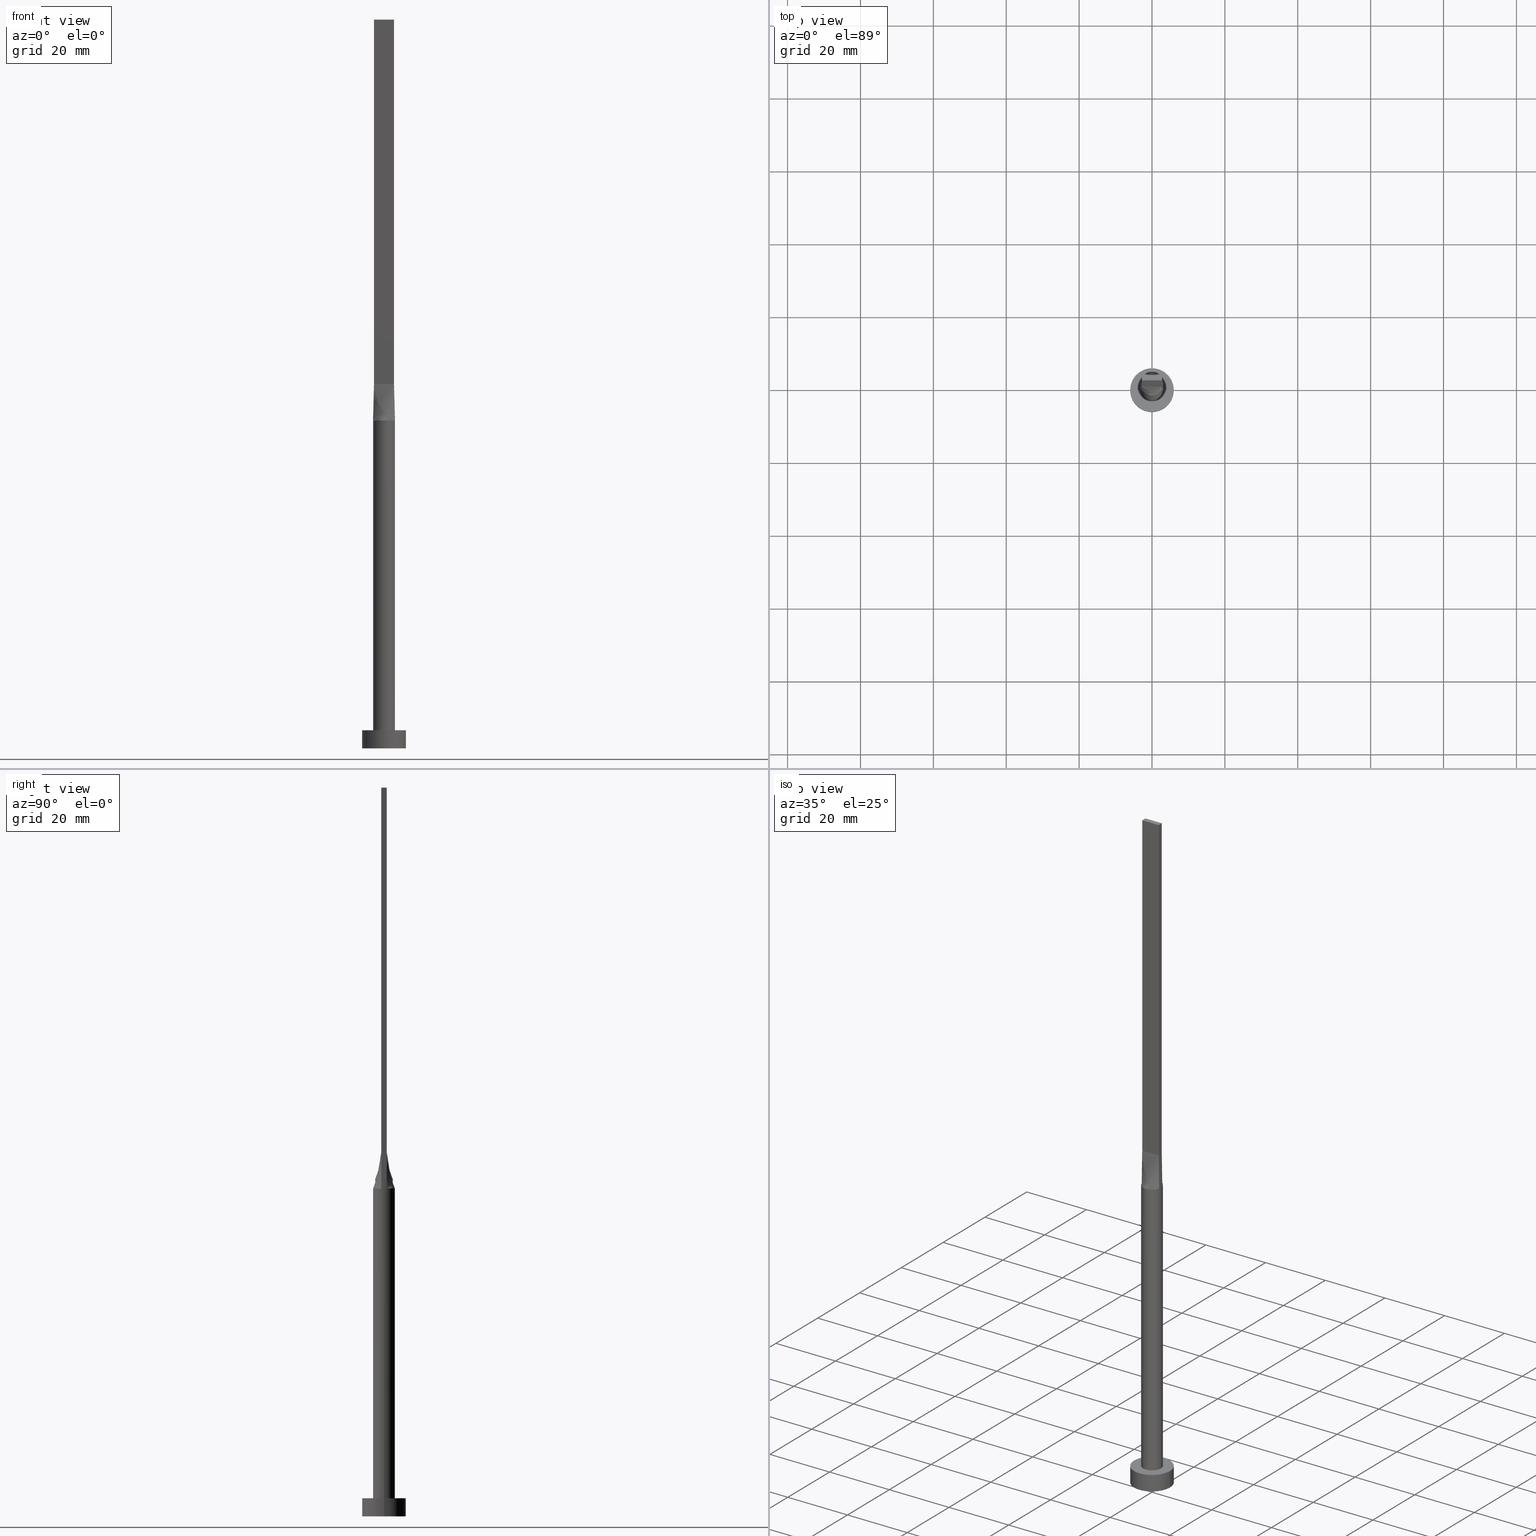
[diagram: canonical four-view strip — front | top / right | iso, engineering-drawing reading convention]
A machine part, canonical four-view strip (front | top / right | iso — engineering-drawing reading convention). The complete STEP part file that produces these views, byte-faithful:
ISO-10303-21;
HEADER;
FILE_DESCRIPTION (( 'STEP AP203' ),
    '1' );
FILE_NAME ('8ec6.STEP',
    '2023-02-13T10:28:10',
    ( '' ),
    ( '' ),
    'SwSTEP 2.0',
    'SolidWorks 2019',
    '' );
FILE_SCHEMA (( 'CONFIG_CONTROL_DESIGN' ));
ENDSEC;

DATA;
#1 = CARTESIAN_POINT ( 'NONE',  ( -6.000000000000000888, 0.000000000000000000, 5.000000000000000000 ) ) ;
#2 = CARTESIAN_POINT ( 'NONE',  ( 2.520833333333333037, 0.7500000000000002220, 100.0000000000000000 ) ) ;
#3 = FACE_OUTER_BOUND ( 'NONE', #113, .T. ) ;
#4 = CC_DESIGN_DATE_AND_TIME_ASSIGNMENT ( #383, #248, ( #301 ) ) ;
#5 = LOCAL_TIME ( 11, 28, 10.00000000000000000, #408 ) ;
#6 = CARTESIAN_POINT ( 'NONE',  ( 2.750000000000000000, -0.7499999999999997780, 200.0000000000000000 ) ) ;
#7 = AXIS2_PLACEMENT_3D ( 'NONE', #29, #311, #445 ) ;
#8 = EDGE_LOOP ( 'NONE', ( #475, #428 ) ) ;
#9 = AXIS2_PLACEMENT_3D ( 'NONE', #112, #63, #290 ) ;
#10 = ORIENTED_EDGE ( 'NONE', *, *, #479, .F. ) ;
#11 = PRODUCT_RELATED_PRODUCT_CATEGORY ( 'detail', '', ( #179 ) ) ;
#12 = VERTEX_POINT ( 'NONE', #153 ) ;
#13 = DIRECTION ( 'NONE',  ( 0.000000000000000000, 0.000000000000000000, 1.000000000000000000 ) ) ;
#14 = CARTESIAN_POINT ( 'NONE',  ( -2.750000000000000000, 0.7500000000000002220, 100.0000000000000000 ) ) ;
#15 = CIRCLE ( 'NONE', #347, 3.000000000000000444 ) ;
#16 = CARTESIAN_POINT ( 'NONE',  ( 2.520833333333333481, -0.7499999999999997780, 100.0000000000000000 ) ) ;
#17 = CARTESIAN_POINT ( 'NONE',  ( 2.750000000000000000, 0.7500000000000002220, 200.0000000000000000 ) ) ;
#18 = EDGE_CURVE ( 'NONE', #274, #464, #47, .T. ) ;
#19 = ORIENTED_EDGE ( 'NONE', *, *, #472, .F. ) ;
#20 = DATE_AND_TIME ( #557, #310 ) ;
#21 = CARTESIAN_POINT ( 'NONE',  ( -2.750000000000000000, 0.7500000000000002220, 100.0000000000000000 ) ) ;
#22 = CARTESIAN_POINT ( 'NONE',  ( 0.000000000000000000, 0.000000000000000000, 200.0000000000000000 ) ) ;
#23 = APPROVAL_ROLE ( '' ) ;
#24 = CYLINDRICAL_SURFACE ( 'NONE', #9, 6.000000000000000888 ) ;
#25 = VECTOR ( 'NONE', #315, 1000.000000000000000 ) ;
#26 = ORIENTED_EDGE ( 'NONE', *, *, #358, .T. ) ;
#27 = CARTESIAN_POINT ( 'NONE',  ( -3.000000000000000444, 0.000000000000000000, 90.00000000000001421 ) ) ;
#28 = EDGE_CURVE ( 'NONE', #521, #545, #377, .T. ) ;
#29 = CARTESIAN_POINT ( 'NONE',  ( 2.750000000000000000, 0.7500000000000002220, 200.0000000000000000 ) ) ;
#30 = APPROVAL_STATUS ( 'not_yet_approved' ) ;
#31 = CARTESIAN_POINT ( 'NONE',  ( 1.145833333333335924, -0.7499999999999996669, 100.0000000000000000 ) ) ;
#32 = CARTESIAN_POINT ( 'NONE',  ( 1.751288851749022379, 2.458468820606022565, 89.99999999999997158 ) ) ;
#33 = VERTEX_POINT ( 'NONE', #200 ) ;
#34 = EDGE_CURVE ( 'NONE', #555, #552, #298, .T. ) ;
#35 = CARTESIAN_POINT ( 'NONE',  ( 1.145833333333333037, 0.7500000000000003331, 100.0000000000000142 ) ) ;
#36 = CC_DESIGN_APPROVAL ( #221, ( #374 ) ) ;
#37 = DIRECTION ( 'NONE',  ( -1.000000000000000000, 0.000000000000000000, 0.000000000000000000 ) ) ;
#38 = CARTESIAN_POINT ( 'NONE',  ( -2.894291463713197121, -0.7893522173763259930, 90.00000000000001421 ) ) ;
#39 = PERSON_AND_ORGANIZATION ( #367, #73 ) ;
#40 = DIRECTION ( 'NONE',  ( -0.000000000000000000, -0.000000000000000000, -1.000000000000000000 ) ) ;
#41 = CARTESIAN_POINT ( 'NONE',  ( 0.9166666666666664076, 0.7500000000000003331, 100.0000000000000142 ) ) ;
#42 = EDGE_CURVE ( 'NONE', #243, #407, #15, .T. ) ;
#43 = CARTESIAN_POINT ( 'NONE',  ( -3.000000000000000000, 0.2678361673275868049, 90.00000000000001421 ) ) ;
#44 = DIRECTION ( 'NONE',  ( 0.000000000000000000, 0.000000000000000000, 1.000000000000000000 ) ) ;
#45 = AXIS2_PLACEMENT_3D ( 'NONE', #329, #197, #341 ) ;
#46 = CALENDAR_DATE ( 2023, 13, 2 ) ;
#47 = CIRCLE ( 'NONE', #450, 6.000000000000000888 ) ;
#48 = FACE_OUTER_BOUND ( 'NONE', #518, .T. ) ;
#49 = CARTESIAN_POINT ( 'NONE',  ( -2.750000000000000000, 0.7500000000000002220, 200.0000000000000000 ) ) ;
#50 = DIRECTION ( 'NONE',  ( -0.01442753284129401174, 0.003934781683989412894, 0.9998881756422629552 ) ) ;
#51 = CARTESIAN_POINT ( 'NONE',  ( 2.822145731856598339, 0.7696761086881640512, 95.00000000000000000 ) ) ;
#52 = ORIENTED_EDGE ( 'NONE', *, *, #534, .F. ) ;
#53 = CARTESIAN_POINT ( 'NONE',  ( -2.750000000000000000, 0.7500000000000002220, 100.0000000000000000 ) ) ;
#54 = AXIS2_PLACEMENT_3D ( 'NONE', #293, #13, #196 ) ;
#55 = VERTEX_POINT ( 'NONE', #151 ) ;
#56 = ADVANCED_FACE ( 'NONE', ( #239 ), #75, .T. ) ;
#57 = DATE_AND_TIME ( #303, #402 ) ;
#58 = CARTESIAN_POINT ( 'NONE',  ( -2.248179627679386616, -2.014142483996539390, 89.99999999999998579 ) ) ;
#59 = LINE ( 'NONE', #508, #188 ) ;
#60 = CC_DESIGN_APPROVAL ( #169, ( #301 ) ) ;
#61 = ORIENTED_EDGE ( 'NONE', *, *, #42, .T. ) ;
#62 = ORIENTED_EDGE ( 'NONE', *, *, #455, .F. ) ;
#63 = DIRECTION ( 'NONE',  ( -0.000000000000000000, -0.000000000000000000, -1.000000000000000000 ) ) ;
#64 = DATE_TIME_ROLE ( 'creation_date' ) ;
#65 = ADVANCED_FACE ( 'NONE', ( #198 ), #375, .F. ) ;
#66 = CARTESIAN_POINT ( 'NONE',  ( 2.733316749964666670, -1.269511353635832229, 90.00000000000004263 ) ) ;
#67 = DIRECTION ( 'NONE',  ( 1.000000000000000000, 0.000000000000000000, 0.000000000000000000 ) ) ;
#68 = LINE ( 'NONE', #204, #244 ) ;
#69 = VECTOR ( 'NONE', #514, 1000.000000000000000 ) ;
#70 = DIRECTION ( 'NONE',  ( 0.000000000000000000, 0.000000000000000000, 1.000000000000000000 ) ) ;
#71 = DIRECTION ( 'NONE',  ( 1.000000000000000000, 0.000000000000000000, 0.000000000000000000 ) ) ;
#72 = CARTESIAN_POINT ( 'NONE',  ( -1.833333333333333481, 0.7500000000000002220, 100.0000000000000000 ) ) ;
#73 = ORGANIZATION ( 'NEUR�EN�', 'NEUR�EN�', '' ) ;
#74 = CARTESIAN_POINT ( 'NONE',  ( 2.750000000000000000, 0.7500000000000002220, 200.0000000000000000 ) ) ;
#75 = CYLINDRICAL_SURFACE ( 'NONE', #317, 6.000000000000000888 ) ;
#76 = CARTESIAN_POINT ( 'NONE',  ( -2.520833333333333037, 0.7500000000000002220, 100.0000000000000000 ) ) ;
#77 = ORIENTED_EDGE ( 'NONE', *, *, #152, .F. ) ;
#78 = APPROVAL_DATE_TIME ( #164, #169 ) ;
#79 = CC_DESIGN_PERSON_AND_ORGANIZATION_ASSIGNMENT ( #166, #155, ( #374 ) ) ;
#80 = VERTEX_POINT ( 'NONE', #556 ) ;
#81 = CARTESIAN_POINT ( 'NONE',  ( 2.442412046818594362, -1.765588549521970751, 90.00000000000002842 ) ) ;
#82 = DIRECTION ( 'NONE',  ( -0.01442753284129405511, -0.003934781683989273249, -0.9998881756422629552 ) ) ;
#83 = ORIENTED_EDGE ( 'NONE', *, *, #534, .T. ) ;
#84 = CC_DESIGN_APPROVAL ( #278, ( #291 ) ) ;
#85 = ORIENTED_EDGE ( 'NONE', *, *, #305, .F. ) ;
#86 = CARTESIAN_POINT ( 'NONE',  ( 0.000000000000000000, 0.000000000000000000, 90.00000000000001421 ) ) ;
#87 = DIRECTION ( 'NONE',  ( 0.000000000000000000, 0.000000000000000000, 1.000000000000000000 ) ) ;
#88 = VECTOR ( 'NONE', #40, 1000.000000000000000 ) ;
#89 = ORIENTED_EDGE ( 'NONE', *, *, #187, .T. ) ;
#90 = AXIS2_PLACEMENT_3D ( 'NONE', #124, #327, #253 ) ;
#91 = CARTESIAN_POINT ( 'NONE',  ( 0.9166666666666695162, -0.7499999999999995559, 100.0000000000000000 ) ) ;
#92 = FACE_BOUND ( 'NONE', #466, .T. ) ;
#93 = DIRECTION ( 'NONE',  ( -0.000000000000000000, -0.000000000000000000, -1.000000000000000000 ) ) ;
#94 = CC_DESIGN_PERSON_AND_ORGANIZATION_ASSIGNMENT ( #235, #149, ( #179 ) ) ;
#95 = FACE_OUTER_BOUND ( 'NONE', #8, .T. ) ;
#96 = FACE_OUTER_BOUND ( 'NONE', #525, .T. ) ;
#97 = CARTESIAN_POINT ( 'NONE',  ( 0.3818979204996068022, -3.000000000000001332, 90.00000000000001421 ) ) ;
#98 = CARTESIAN_POINT ( 'NONE',  ( -2.963522232943965662, 0.5355060635301726046, 89.99999999999998579 ) ) ;
#99 = CARTESIAN_POINT ( 'NONE',  ( 2.894482401701604424, 0.7894050286368272662, 90.00000000000001421 ) ) ;
#100 = CARTESIAN_POINT ( 'NONE',  ( -1.751288851749021491, 2.458468820606022565, 89.99999999999998579 ) ) ;
#101 = CARTESIAN_POINT ( 'NONE',  ( 0.4583333333333364235, -0.7499999999999995559, 100.0000000000000000 ) ) ;
#102 = LINE ( 'NONE', #231, #25 ) ;
#103 = AXIS2_PLACEMENT_3D ( 'NONE', #22, #339, #201 ) ;
#104 = PLANE ( 'NONE',  #430 ) ;
#105 = EDGE_CURVE ( 'NONE', #545, #116, #59, .T. ) ;
#106 = EDGE_LOOP ( 'NONE', ( #302, #168, #338, #176 ) ) ;
#107 = VECTOR ( 'NONE', #354, 1000.000000000000000 ) ;
#108 = DIRECTION ( 'NONE',  ( 1.000000000000000000, -5.329070518200751394E-15, 0.000000000000000000 ) ) ;
#109 = CARTESIAN_POINT ( 'NONE',  ( -2.894291463713197121, -0.7893522173763257710, 90.00000000000001421 ) ) ;
#110 = CC_DESIGN_PERSON_AND_ORGANIZATION_ASSIGNMENT ( #424, #562, ( #374 ) ) ;
#111 = CARTESIAN_POINT ( 'NONE',  ( 0.000000000000000000, 0.000000000000000000, 5.000000000000000000 ) ) ;
#112 = CARTESIAN_POINT ( 'NONE',  ( 0.000000000000000000, 0.000000000000000000, 5.000000000000000000 ) ) ;
#113 = EDGE_LOOP ( 'NONE', ( #247, #131, #62, #568, #150, #260 ) ) ;
#114 = CARTESIAN_POINT ( 'NONE',  ( 1.604166666666668961, -0.7499999999999997780, 100.0000000000000000 ) ) ;
#115 = CARTESIAN_POINT ( 'NONE',  ( -2.750000000000000000, -0.7499999999999994449, 200.0000000000000000 ) ) ;
#116 = VERTEX_POINT ( 'NONE', #21 ) ;
#117 = FACE_OUTER_BOUND ( 'NONE', #506, .T. ) ;
#118 = PERSON_AND_ORGANIZATION ( #367, #73 ) ;
#119 = ORIENTED_EDGE ( 'NONE', *, *, #271, .F. ) ;
#120 = APPROVAL_ROLE ( '' ) ;
#121 = CARTESIAN_POINT ( 'NONE',  ( 2.750000000000000000, -0.7499999999999997780, 100.0000000000000000 ) ) ;
#122 = ORIENTED_EDGE ( 'NONE', *, *, #472, .T. ) ;
#123 = CC_DESIGN_PERSON_AND_ORGANIZATION_ASSIGNMENT ( #513, #159, ( #301 ) ) ;
#124 = CARTESIAN_POINT ( 'NONE',  ( 0.000000000000000000, 0.000000000000000000, 90.00000000000001421 ) ) ;
#125 = ORIENTED_EDGE ( 'NONE', *, *, #18, .F. ) ;
#126 = PERSON_AND_ORGANIZATION ( #367, #73 ) ;
#127 = CARTESIAN_POINT ( 'NONE',  ( 2.750000000000000000, -0.7499999999999997780, 200.0000000000000000 ) ) ;
#128 = AXIS2_PLACEMENT_3D ( 'NONE', #236, #328, #67 ) ;
#129 = ORIENTED_EDGE ( 'NONE', *, *, #34, .F. ) ;
#130 = EDGE_CURVE ( 'NONE', #340, #33, #416, .T. ) ;
#131 = ORIENTED_EDGE ( 'NONE', *, *, #42, .F. ) ;
#132 = CARTESIAN_POINT ( 'NONE',  ( -0.9166666666666669627, 0.7500000000000002220, 100.0000000000000000 ) ) ;
#133 = VERTEX_POINT ( 'NONE', #115 ) ;
#134 = DIRECTION ( 'NONE',  ( 0.000000000000000000, 0.000000000000000000, 1.000000000000000000 ) ) ;
#135 = CARTESIAN_POINT ( 'NONE',  ( 2.894291463713196677, 0.7893522173763277694, 90.00000000000001421 ) ) ;
#136 = LINE ( 'NONE', #396, #427 ) ;
#137 = DIRECTION ( 'NONE',  ( -0.000000000000000000, -0.000000000000000000, -1.000000000000000000 ) ) ;
#138 = CARTESIAN_POINT ( 'NONE',  ( -2.894291463713196677, 0.7893522173763264371, 90.00000000000001421 ) ) ;
#139 = LINE ( 'NONE', #279, #161 ) ;
#140 = EDGE_CURVE ( 'NONE', #55, #80, #292, .T. ) ;
#141 = CARTESIAN_POINT ( 'NONE',  ( 2.750000000000000000, 0.7500000000000002220, 100.0000000000000000 ) ) ;
#142 = CARTESIAN_POINT ( 'NONE',  ( -2.963522232943966106, -0.5355060635301720495, 90.00000000000002842 ) ) ;
#143 = CARTESIAN_POINT ( 'NONE',  ( 0.7628506052746785171, -2.924692134573155577, 90.00000000000000000 ) ) ;
#144 = CARTESIAN_POINT ( 'NONE',  ( 3.000000000000000444, 3.673940397442060361E-16, 90.00000000000001421 ) ) ;
#145 = CARTESIAN_POINT ( 'NONE',  ( 1.833333333333333037, 0.7500000000000002220, 100.0000000000000000 ) ) ;
#146 = EDGE_CURVE ( 'NONE', #133, #203, #468, .T. ) ;
#147 = CARTESIAN_POINT ( 'NONE',  ( -0.4583333333333302062, -0.7499999999999995559, 100.0000000000000142 ) ) ;
#148 = CARTESIAN_POINT ( 'NONE',  ( 2.248179627679384840, -2.014142483996542055, 90.00000000000001421 ) ) ;
#149 = PERSON_AND_ORGANIZATION_ROLE ( 'design_owner' ) ;
#150 = ORIENTED_EDGE ( 'NONE', *, *, #152, .T. ) ;
#151 = CARTESIAN_POINT ( 'NONE',  ( -6.000000000000000888, 0.000000000000000000, 0.000000000000000000 ) ) ;
#152 = EDGE_CURVE ( 'NONE', #340, #555, #390, .T. ) ;
#153 = CARTESIAN_POINT ( 'NONE',  ( -2.750000000000000000, -0.7499999999999994449, 100.0000000000000000 ) ) ;
#154 = ORIENTED_EDGE ( 'NONE', *, *, #140, .T. ) ;
#155 = PERSON_AND_ORGANIZATION_ROLE ( 'creator' ) ;
#156 = ORIENTED_EDGE ( 'NONE', *, *, #191, .F. ) ;
#157 = PLANE ( 'NONE',  #510 ) ;
#158 = DESIGN_CONTEXT ( 'detailed design', #330, 'design' ) ;
#159 = PERSON_AND_ORGANIZATION_ROLE ( 'classification_officer' ) ;
#160 = DIRECTION ( 'NONE',  ( 1.000000000000000000, 0.000000000000000000, -0.000000000000000000 ) ) ;
#161 = VECTOR ( 'NONE', #185, 1000.000000000000000 ) ;
#162 = VECTOR ( 'NONE', #548, 1000.000000000000000 ) ;
#163 = CC_DESIGN_DATE_AND_TIME_ASSIGNMENT ( #57, #64, ( #291 ) ) ;
#164 = DATE_AND_TIME ( #370, #498 ) ;
#165 = ORIENTED_EDGE ( 'NONE', *, *, #146, .F. ) ;
#166 = PERSON_AND_ORGANIZATION ( #367, #73 ) ;
#167 = LINE ( 'NONE', #566, #442 ) ;
#168 = ORIENTED_EDGE ( 'NONE', *, *, #312, .F. ) ;
#169 = APPROVAL ( #413, 'NEUR�EN�' ) ;
#170 = CLOSED_SHELL ( 'NONE', ( #325, #447, #56, #372, #65, #286, #520, #366, #563, #382, #209, #412, #577, #344, #462 ) ) ;
#171 = ORIENTED_EDGE ( 'NONE', *, *, #146, .T. ) ;
#172 = ORIENTED_EDGE ( 'NONE', *, *, #554, .T. ) ;
#173 = COORDINATED_UNIVERSAL_TIME_OFFSET ( 1, 0, .AHEAD. ) ;
#174 = CARTESIAN_POINT ( 'NONE',  ( -0.4583333333333337034, 0.7500000000000003331, 100.0000000000000000 ) ) ;
#175 =( NAMED_UNIT ( * ) SI_UNIT ( $, .STERADIAN. ) SOLID_ANGLE_UNIT ( ) );
#176 = ORIENTED_EDGE ( 'NONE', *, *, #105, .T. ) ;
#177 = CARTESIAN_POINT ( 'NONE',  ( 1.751288851749022379, 2.458468820606022565, 89.99999999999997158 ) ) ;
#178 = DIRECTION ( 'NONE',  ( 1.000000000000000000, 0.000000000000000000, 0.000000000000000000 ) ) ;
#179 = PRODUCT ( '8ec6', '8ec6', '', ( #207 ) ) ;
#180 = CARTESIAN_POINT ( 'NONE',  ( -0.3818979204996078569, 3.000000000000000888, 89.99999999999998579 ) ) ;
#181 = LINE ( 'NONE', #6, #107 ) ;
#182 = EDGE_CURVE ( 'NONE', #254, #572, #356, .T. ) ;
#183 = CARTESIAN_POINT ( 'NONE',  ( -2.750000000000000000, 0.7500000000000002220, 200.0000000000000000 ) ) ;
#184 = CARTESIAN_POINT ( 'NONE',  ( 0.3818979204996085230, 3.000000000000001332, 90.00000000000001421 ) ) ;
#185 = DIRECTION ( 'NONE',  ( 0.000000000000000000, 1.000000000000000000, 0.000000000000000000 ) ) ;
#186 = DATE_AND_TIME ( #46, #5 ) ;
#187 = EDGE_CURVE ( 'NONE', #12, #33, #349, .T. ) ;
#188 = VECTOR ( 'NONE', #501, 1000.000000000000000 ) ;
#189 = CARTESIAN_POINT ( 'NONE',  ( -1.751288851749022379, -2.458468820606022565, 90.00000000000001421 ) ) ;
#190 = LINE ( 'NONE', #452, #322 ) ;
#191 = EDGE_CURVE ( 'NONE', #116, #12, #167, .T. ) ;
#192 = ORIENTED_EDGE ( 'NONE', *, *, #28, .F. ) ;
#193 = ORIENTED_EDGE ( 'NONE', *, *, #547, .T. ) ;
#194 = DIRECTION ( 'NONE',  ( -1.000000000000000000, -0.000000000000000000, -0.000000000000000000 ) ) ;
#195 = COORDINATED_UNIVERSAL_TIME_OFFSET ( 1, 0, .AHEAD. ) ;
#196 = DIRECTION ( 'NONE',  ( 1.000000000000000000, 0.000000000000000000, 0.000000000000000000 ) ) ;
#197 = DIRECTION ( 'NONE',  ( 0.000000000000000000, 0.000000000000000000, 1.000000000000000000 ) ) ;
#198 = FACE_OUTER_BOUND ( 'NONE', #530, .T. ) ;
#199 = DIRECTION ( 'NONE',  ( -0.000000000000000000, 0.000000000000000000, -1.000000000000000000 ) ) ;
#200 = CARTESIAN_POINT ( 'NONE',  ( -2.894489875237701959, -0.7894071376467488577, 90.00000000000001421 ) ) ;
#201 = DIRECTION ( 'NONE',  ( 1.000000000000000000, 0.000000000000000000, -0.000000000000000000 ) ) ;
#202 = EDGE_CURVE ( 'NONE', #572, #340, #266, .T. ) ;
#203 = VERTEX_POINT ( 'NONE', #127 ) ;
#204 = CARTESIAN_POINT ( 'NONE',  ( -2.750000000000000000, 0.7500000000000002220, 100.0000000000000000 ) ) ;
#205 = AXIS2_PLACEMENT_3D ( 'NONE', #495, #137, #484 ) ;
#206 = ORIENTED_EDGE ( 'NONE', *, *, #130, .T. ) ;
#207 = MECHANICAL_CONTEXT ( 'NONE', #435, 'mechanical' ) ;
#208 = ORIENTED_EDGE ( 'NONE', *, *, #511, .T. ) ;
#209 = ADVANCED_FACE ( 'NONE', ( #478 ), #263, .F. ) ;
#210 = ORIENTED_EDGE ( 'NONE', *, *, #554, .F. ) ;
#211 = AXIS2_PLACEMENT_3D ( 'NONE', #461, #414, #550 ) ;
#212 = CARTESIAN_POINT ( 'NONE',  ( -0.7628506052746797383, 2.924692134573155133, 90.00000000000002842 ) ) ;
#213 = ORIENTED_EDGE ( 'NONE', *, *, #547, .F. ) ;
#214 = ORIENTED_EDGE ( 'NONE', *, *, #486, .F. ) ;
#215 = CARTESIAN_POINT ( 'NONE',  ( -1.751288851749021491, 2.458468820606022565, 89.99999999999998579 ) ) ;
#216 = CARTESIAN_POINT ( 'NONE',  ( -1.145833333333333703, 0.7500000000000002220, 100.0000000000000000 ) ) ;
#217 = DIRECTION ( 'NONE',  ( -1.000000000000000000, 5.913830031739115543E-17, 0.000000000000000000 ) ) ;
#218 = APPROVAL_PERSON_ORGANIZATION ( #39, #278, #224 ) ;
#219 = CARTESIAN_POINT ( 'NONE',  ( 2.894482401701604424, 0.7894050286368272662, 90.00000000000001421 ) ) ;
#220 = CARTESIAN_POINT ( 'NONE',  ( 2.750000000000000000, -0.7499999999999997780, 100.0000000000000000 ) ) ;
#221 = APPROVAL ( #30, 'NEUR�EN�' ) ;
#222 = APPLICATION_PROTOCOL_DEFINITION ( 'international standard', 'config_control_design', 1994, #435 ) ;
#223 = CARTESIAN_POINT ( 'NONE',  ( 0.000000000000000000, 0.000000000000000000, 90.00000000000001421 ) ) ;
#224 = APPROVAL_ROLE ( '' ) ;
#225 = CARTESIAN_POINT ( 'NONE',  ( 2.750000000000000000, 0.7500000000000002220, 100.0000000000000000 ) ) ;
#226 = CIRCLE ( 'NONE', #45, 6.000000000000000888 ) ;
#227 = CARTESIAN_POINT ( 'NONE',  ( 1.751288851749020603, -2.458468820606023897, 90.00000000000000000 ) ) ;
#228 = DIRECTION ( 'NONE',  ( 1.000000000000000000, 0.000000000000000000, 0.000000000000000000 ) ) ;
#229 = CARTESIAN_POINT ( 'NONE',  ( 2.963522232943965662, 0.5355060635301733818, 90.00000000000002842 ) ) ;
#230 = CARTESIAN_POINT ( 'NONE',  ( 1.447928580458857972, -2.653161878569119558, 90.00000000000001421 ) ) ;
#231 = CARTESIAN_POINT ( 'NONE',  ( -2.750000000000000000, -0.7499999999999994449, 100.0000000000000000 ) ) ;
#232 = EDGE_CURVE ( 'NONE', #545, #133, #490, .T. ) ;
#233 = ORIENTED_EDGE ( 'NONE', *, *, #202, .F. ) ;
#234 = ORIENTED_EDGE ( 'NONE', *, *, #358, .F. ) ;
#235 = PERSON_AND_ORGANIZATION ( #367, #73 ) ;
#236 = CARTESIAN_POINT ( 'NONE',  ( 0.000000000000000000, 0.000000000000000000, 5.000000000000000000 ) ) ;
#237 = CARTESIAN_POINT ( 'NONE',  ( 2.750000000000000000, 0.7500000000000002220, 100.0000000000000000 ) ) ;
#238 = EDGE_CURVE ( 'NONE', #243, #342, #449, .T. ) ;
#239 = FACE_OUTER_BOUND ( 'NONE', #264, .T. ) ;
#240 = CARTESIAN_POINT ( 'NONE',  ( -2.291666666666666519, 0.7500000000000002220, 100.0000000000000000 ) ) ;
#241 = VECTOR ( 'NONE', #82, 1000.000000000000114 ) ;
#242 = CARTESIAN_POINT ( 'NONE',  ( 2.291666666666667407, -0.7499999999999997780, 100.0000000000000000 ) ) ;
#243 = VERTEX_POINT ( 'NONE', #493 ) ;
#244 = VECTOR ( 'NONE', #194, 1000.000000000000000 ) ;
#245 = LINE ( 'NONE', #237, #318 ) ;
#246 = UNCERTAINTY_MEASURE_WITH_UNIT (LENGTH_MEASURE( 1.000000000000000082E-05 ), #474, 'distance_accuracy_value', 'NONE');
#247 = ORIENTED_EDGE ( 'NONE', *, *, #250, .F. ) ;
#248 = DATE_TIME_ROLE ( 'classification_date' ) ;
#249 = DIRECTION ( 'NONE',  ( 0.000000000000000000, 0.000000000000000000, 1.000000000000000000 ) ) ;
#250 = EDGE_CURVE ( 'NONE', #407, #552, #400, .T. ) ;
#251 = CARTESIAN_POINT ( 'NONE',  ( -2.733316749964668002, 1.269511353635830453, 90.00000000000004263 ) ) ;
#252 = CARTESIAN_POINT ( 'NONE',  ( 0.000000000000000000, 0.000000000000000000, 5.000000000000000000 ) ) ;
#253 = DIRECTION ( 'NONE',  ( 1.000000000000000000, 0.000000000000000000, 0.000000000000000000 ) ) ;
#254 = VERTEX_POINT ( 'NONE', #99 ) ;
#255 = ORIENTED_EDGE ( 'NONE', *, *, #271, .T. ) ;
#256 = COORDINATED_UNIVERSAL_TIME_OFFSET ( 1, 0, .AHEAD. ) ;
#257 = CARTESIAN_POINT ( 'NONE',  ( 2.830829925251657997, 1.022044525068634302, 90.00000000000004263 ) ) ;
#258 = EDGE_CURVE ( 'NONE', #203, #521, #139, .T. ) ;
#259 = ORIENTED_EDGE ( 'NONE', *, *, #250, .T. ) ;
#260 = ORIENTED_EDGE ( 'NONE', *, *, #34, .T. ) ;
#261 = B_SPLINE_SURFACE_WITH_KNOTS ( 'NONE', 3, 1, ( 
 ( #138, #53 ),
 ( #98, #281 ),
 ( #43, #398 ),
 ( #523, #440 ),
 ( #142, #388 ),
 ( #38, #355 ) ),
 .UNSPECIFIED., .F., .F., .F.,
 ( 4, 2, 4 ),
 ( 2, 2 ),
 ( 0.000000000000000000, 0.5000000000000000000, 1.000000000000000000 ),
 ( 0.000000000000000000, 1.000000000000000000 ),
 .UNSPECIFIED. ) ;
#262 = CARTESIAN_POINT ( 'NONE',  ( 1.833333333333335258, -0.7499999999999997780, 100.0000000000000000 ) ) ;
#263 = PLANE ( 'NONE',  #7 ) ;
#264 = EDGE_LOOP ( 'NONE', ( #210, #125, #193, #154 ) ) ;
#265 = ADVANCED_BREP_SHAPE_REPRESENTATION ( '8ec6', ( #284, #561 ), #502 ) ;
#266 = CIRCLE ( 'NONE', #385, 3.000000000000000444 ) ;
#267 = VECTOR ( 'NONE', #516, 1000.000000000000114 ) ;
#268 = CARTESIAN_POINT ( 'NONE',  ( 2.894291463713197121, 0.7893522173763263261, 90.00000000000001421 ) ) ;
#269 = ORIENTED_EDGE ( 'NONE', *, *, #305, .T. ) ;
#270 = APPLICATION_PROTOCOL_DEFINITION ( 'international standard', 'config_control_design', 1994, #330 ) ;
#271 = EDGE_CURVE ( 'NONE', #407, #254, #379, .T. ) ;
#272 = DIRECTION ( 'NONE',  ( 1.000000000000000000, 0.000000000000000000, -0.000000000000000000 ) ) ;
#273 = CIRCLE ( 'NONE', #573, 3.000000000000000444 ) ;
#274 = VERTEX_POINT ( 'NONE', #1 ) ;
#275 = CYLINDRICAL_SURFACE ( 'NONE', #205, 3.000000000000000444 ) ;
#276 = CARTESIAN_POINT ( 'NONE',  ( 2.442412046818595250, 1.765588549521970529, 90.00000000000004263 ) ) ;
#277 = CARTESIAN_POINT ( 'NONE',  ( -0.2291666666666670460, 0.7500000000000003331, 100.0000000000000142 ) ) ;
#278 = APPROVAL ( #580, 'NEUR�EN�' ) ;
#279 = CARTESIAN_POINT ( 'NONE',  ( 2.750000000000000000, -0.7499999999999997780, 200.0000000000000000 ) ) ;
#280 = CARTESIAN_POINT ( 'NONE',  ( 2.830829925251657997, 1.022044525068634302, 90.00000000000004263 ) ) ;
#281 = CARTESIAN_POINT ( 'NONE',  ( -2.750000000000000000, 0.5000000000000004441, 100.0000000000000000 ) ) ;
#282 = EDGE_LOOP ( 'NONE', ( #119, #259, #83, #77, #233, #438 ) ) ;
#283 = ORIENTED_EDGE ( 'NONE', *, *, #140, .F. ) ;
#284 = MANIFOLD_SOLID_BREP ( 'P�idat vysunut�m5', #170 ) ;
#285 = DIRECTION ( 'NONE',  ( 0.000000000000000000, 0.000000000000000000, 1.000000000000000000 ) ) ;
#286 = ADVANCED_FACE ( 'NONE', ( #3 ), #453, .T. ) ;
#287 = CARTESIAN_POINT ( 'NONE',  ( -2.750000000000000000, -0.7499999999999994449, 100.0000000000000000 ) ) ;
#288 = ORIENTED_EDGE ( 'NONE', *, *, #486, .T. ) ;
#289 = DIRECTION ( 'NONE',  ( 0.000000000000000000, 0.000000000000000000, 1.000000000000000000 ) ) ;
#290 = DIRECTION ( 'NONE',  ( -1.000000000000000000, 0.000000000000000000, 0.000000000000000000 ) ) ;
#291 = PRODUCT_DEFINITION ( 'NEZN�M�', '', #374, #158 ) ;
#292 = CIRCLE ( 'NONE', #364, 6.000000000000000888 ) ;
#293 = CARTESIAN_POINT ( 'NONE',  ( 0.000000000000000000, 0.000000000000000000, 90.00000000000001421 ) ) ;
#294 = CARTESIAN_POINT ( 'NONE',  ( -2.520833333333333037, -0.7499999999999994449, 100.0000000000000000 ) ) ;
#295 = ORIENTED_EDGE ( 'NONE', *, *, #202, .T. ) ;
#296 = CARTESIAN_POINT ( 'NONE',  ( -2.442412046818596139, 1.765588549521969641, 90.00000000000004263 ) ) ;
#297 = CARTESIAN_POINT ( 'NONE',  ( 0.3818979204996085230, 3.000000000000001332, 90.00000000000001421 ) ) ;
#298 = CIRCLE ( 'NONE', #128, 3.000000000000000444 ) ;
#299 = ORIENTED_EDGE ( 'NONE', *, *, #351, .F. ) ;
#300 = CARTESIAN_POINT ( 'NONE',  ( 2.248179627679386172, 2.014142483996539834, 89.99999999999998579 ) ) ;
#301 = SECURITY_CLASSIFICATION ( '', '', #343 ) ;
#302 = ORIENTED_EDGE ( 'NONE', *, *, #191, .T. ) ;
#303 = CALENDAR_DATE ( 2023, 13, 2 ) ;
#304 = CARTESIAN_POINT ( 'NONE',  ( -3.000000000000000000, -1.912111867153115409E-16, 90.00000000000001421 ) ) ;
#305 = EDGE_CURVE ( 'NONE', #12, #342, #102, .T. ) ;
#306 = CARTESIAN_POINT ( 'NONE',  ( 0.000000000000000000, 0.000000000000000000, 5.000000000000000000 ) ) ;
#307 = FACE_OUTER_BOUND ( 'NONE', #282, .T. ) ;
#308 = CARTESIAN_POINT ( 'NONE',  ( 2.750000000000000000, -0.7499999999999997780, 200.0000000000000000 ) ) ;
#309 = CARTESIAN_POINT ( 'NONE',  ( -2.750000000000000000, -0.7499999999999994449, 200.0000000000000000 ) ) ;
#310 = LOCAL_TIME ( 11, 28, 10.00000000000000000, #195 ) ;
#311 = DIRECTION ( 'NONE',  ( 0.000000000000000000, -1.000000000000000000, 0.000000000000000000 ) ) ;
#312 = EDGE_CURVE ( 'NONE', #133, #12, #136, .T. ) ;
#313 = CARTESIAN_POINT ( 'NONE',  ( 2.750000000000000000, -0.4999999999999992784, 100.0000000000000000 ) ) ;
#314 = CARTESIAN_POINT ( 'NONE',  ( -0.2291666666666634655, -0.7499999999999995559, 100.0000000000000142 ) ) ;
#315 = DIRECTION ( 'NONE',  ( 1.000000000000000000, -5.913830031739115543E-17, 0.000000000000000000 ) ) ;
#316 = CARTESIAN_POINT ( 'NONE',  ( 2.750000000000000000, -0.7499999999999997780, 100.0000000000000000 ) ) ;
#317 = AXIS2_PLACEMENT_3D ( 'NONE', #111, #368, #410 ) ;
#318 = VECTOR ( 'NONE', #411, 1000.000000000000000 ) ;
#319 = ORIENTED_EDGE ( 'NONE', *, *, #426, .T. ) ;
#320 = AXIS2_PLACEMENT_3D ( 'NONE', #309, #489, #217 ) ;
#321 = LINE ( 'NONE', #456, #436 ) ;
#322 = VECTOR ( 'NONE', #403, 1000.000000000000000 ) ;
#323 = CARTESIAN_POINT ( 'NONE',  ( -1.833333333333331261, -0.7499999999999995559, 100.0000000000000000 ) ) ;
#324 = EDGE_LOOP ( 'NONE', ( #61, #255, #560, #214, #326 ) ) ;
#325 = ADVANCED_FACE ( 'NONE', ( #307 ), #275, .T. ) ;
#326 = ORIENTED_EDGE ( 'NONE', *, *, #238, .F. ) ;
#327 = DIRECTION ( 'NONE',  ( 0.000000000000000000, 0.000000000000000000, 1.000000000000000000 ) ) ;
#328 = DIRECTION ( 'NONE',  ( 0.000000000000000000, 0.000000000000000000, 1.000000000000000000 ) ) ;
#329 = CARTESIAN_POINT ( 'NONE',  ( 0.000000000000000000, 0.000000000000000000, 5.000000000000000000 ) ) ;
#330 = APPLICATION_CONTEXT ( 'configuration controlled 3d designs of mechanical parts and assemblies' ) ;
#331 = COORDINATED_UNIVERSAL_TIME_OFFSET ( 1, 0, .AHEAD. ) ;
#332 = CARTESIAN_POINT ( 'NONE',  ( 0.000000000000000000, 0.000000000000000000, 90.00000000000001421 ) ) ;
#333 = LINE ( 'NONE', #373, #267 ) ;
#334 = VECTOR ( 'NONE', #357, 1000.000000000000000 ) ;
#335 = EDGE_LOOP ( 'NONE', ( #295, #206, #380, #156, #565 ) ) ;
#336 = CIRCLE ( 'NONE', #477, 6.000000000000000888 ) ;
#337 = CARTESIAN_POINT ( 'NONE',  ( 2.894291463713196677, -0.7893522173763275473, 90.00000000000001421 ) ) ;
#338 = ORIENTED_EDGE ( 'NONE', *, *, #232, .F. ) ;
#339 = DIRECTION ( 'NONE',  ( 0.000000000000000000, 0.000000000000000000, 1.000000000000000000 ) ) ;
#340 = VERTEX_POINT ( 'NONE', #304 ) ;
#341 = DIRECTION ( 'NONE',  ( 1.000000000000000000, 0.000000000000000000, 0.000000000000000000 ) ) ;
#342 = VERTEX_POINT ( 'NONE', #220 ) ;
#343 = SECURITY_CLASSIFICATION_LEVEL ( 'unclassified' ) ;
#344 = ADVANCED_FACE ( 'NONE', ( #48 ), #362, .F. ) ;
#345 = DIRECTION ( 'NONE',  ( 1.000000000000000000, 0.000000000000000000, 0.000000000000000000 ) ) ;
#346 = ORIENTED_EDGE ( 'NONE', *, *, #105, .F. ) ;
#347 = AXIS2_PLACEMENT_3D ( 'NONE', #332, #285, #108 ) ;
#348 = CIRCLE ( 'NONE', #90, 3.000000000000000444 ) ;
#349 = LINE ( 'NONE', #527, #241 ) ;
#350 = CARTESIAN_POINT ( 'NONE',  ( 2.750000000000000000, 0.7500000000000002220, 100.0000000000000000 ) ) ;
#351 = EDGE_CURVE ( 'NONE', #80, #55, #336, .T. ) ;
#352 = FACE_OUTER_BOUND ( 'NONE', #324, .T. ) ;
#353 = AXIS2_PLACEMENT_3D ( 'NONE', #361, #542, #485 ) ;
#354 = DIRECTION ( 'NONE',  ( -0.000000000000000000, -0.000000000000000000, -1.000000000000000000 ) ) ;
#355 = CARTESIAN_POINT ( 'NONE',  ( -2.750000000000000000, -0.7499999999999993339, 100.0000000000000000 ) ) ;
#356 = B_SPLINE_CURVE_WITH_KNOTS ( 'NONE', 3,
 ( #219, #257, #578, #393, #300, #177, #432, #439, #297, #180, #384, #535, #215, #532, #476, #564, #570, #574 ),
 .UNSPECIFIED., .F., .F.,
 ( 4, 2, 2, 2, 2, 2, 2, 2, 4 ),
 ( 0.000000000000000000, 0.1250000000000000000, 0.2500000000000000000, 0.3750000000000000000, 0.5000000000000000000, 0.6250000000000000000, 0.7500000000000000000, 0.8750000000000000000, 1.000000000000000000 ),
 .UNSPECIFIED. ) ;
#357 = DIRECTION ( 'NONE',  ( 0.000000000000000000, -1.000000000000000000, 0.000000000000000000 ) ) ;
#358 = EDGE_CURVE ( 'NONE', #203, #342, #181, .T. ) ;
#359 = CARTESIAN_POINT ( 'NONE',  ( 2.750000000000000000, 0.2500000000000009437, 100.0000000000000000 ) ) ;
#360 = CARTESIAN_POINT ( 'NONE',  ( -1.447928580458859749, -2.653161878569118226, 90.00000000000000000 ) ) ;
#361 = CARTESIAN_POINT ( 'NONE',  ( 0.000000000000000000, 0.000000000000000000, 90.00000000000001421 ) ) ;
#362 = PLANE ( 'NONE',  #500 ) ;
#363 = VERTEX_POINT ( 'NONE', #225 ) ;
#364 = AXIS2_PLACEMENT_3D ( 'NONE', #371, #289, #417 ) ;
#365 = DIRECTION ( 'NONE',  ( 1.000000000000000000, 0.000000000000000000, 0.000000000000000000 ) ) ;
#366 = ADVANCED_FACE ( 'NONE', ( #352 ), #419, .T. ) ;
#367 = PERSON ( 'NEUR�EN�', 'NEUR�EN�', 'NEUR�EN�', ('NEUR�EN�'), ('NEUR�EN�'), ('NEUR�EN�') ) ;
#368 = DIRECTION ( 'NONE',  ( -0.000000000000000000, -0.000000000000000000, -1.000000000000000000 ) ) ;
#369 = LINE ( 'NONE', #418, #162 ) ;
#370 = CALENDAR_DATE ( 2023, 13, 2 ) ;
#371 = CARTESIAN_POINT ( 'NONE',  ( 0.000000000000000000, 0.000000000000000000, 0.000000000000000000 ) ) ;
#372 = ADVANCED_FACE ( 'NONE', ( #92, #95 ), #104, .T. ) ;
#373 = CARTESIAN_POINT ( 'NONE',  ( -2.822145731856598339, 0.7696761086881630520, 95.00000000000000000 ) ) ;
#374 = PRODUCT_DEFINITION_FORMATION_WITH_SPECIFIED_SOURCE ( 'LIBOVOLN�', '', #179, .NOT_KNOWN. ) ;
#375 = PLANE ( 'NONE',  #211 ) ;
#376 = PLANE ( 'NONE',  #103 ) ;
#377 = LINE ( 'NONE', #17, #567 ) ;
#378 = FACE_OUTER_BOUND ( 'NONE', #457, .T. ) ;
#379 = CIRCLE ( 'NONE', #459, 3.000000000000000444 ) ;
#380 = ORIENTED_EDGE ( 'NONE', *, *, #187, .F. ) ;
#381 = B_SPLINE_SURFACE_WITH_KNOTS ( 'NONE', 3, 1, ( 
 ( #268, #141 ),
 ( #280, #2 ),
 ( #544, #444 ),
 ( #276, #145 ),
 ( #571, #386 ),
 ( #32, #35 ),
 ( #446, #41 ),
 ( #394, #451 ),
 ( #184, #579 ),
 ( #401, #277 ),
 ( #212, #174 ),
 ( #540, #132 ),
 ( #100, #216 ),
 ( #415, #509 ),
 ( #296, #72 ),
 ( #251, #240 ),
 ( #473, #76 ),
 ( #551, #14 ) ),
 .UNSPECIFIED., .F., .F., .F.,
 ( 4, 2, 2, 2, 2, 2, 2, 2, 4 ),
 ( 2, 2 ),
 ( 0.000000000000000000, 0.1250000000000000000, 0.2500000000000000000, 0.3750000000000000000, 0.5000000000000000000, 0.6250000000000000000, 0.7500000000000000000, 0.8750000000000000000, 1.000000000000000000 ),
 ( 0.000000000000000000, 1.000000000000000000 ),
 .UNSPECIFIED. ) ;
#382 = ADVANCED_FACE ( 'NONE', ( #397 ), #381, .T. ) ;
#383 = DATE_AND_TIME ( #519, #420 ) ;
#384 = CARTESIAN_POINT ( 'NONE',  ( -0.7628506052746797383, 2.924692134573155133, 90.00000000000002842 ) ) ;
#385 = AXIS2_PLACEMENT_3D ( 'NONE', #86, #134, #345 ) ;
#386 = CARTESIAN_POINT ( 'NONE',  ( 1.604166666666666519, 0.7500000000000002220, 100.0000000000000000 ) ) ;
#387 = DIRECTION ( 'NONE',  ( 1.000000000000000000, 0.000000000000000000, 0.000000000000000000 ) ) ;
#388 = CARTESIAN_POINT ( 'NONE',  ( -2.750000000000000000, -0.4999999999999992784, 100.0000000000000000 ) ) ;
#389 = ORIENTED_EDGE ( 'NONE', *, *, #351, .T. ) ;
#390 = LINE ( 'NONE', #27, #494 ) ;
#391 = CC_DESIGN_SECURITY_CLASSIFICATION ( #301, ( #374 ) ) ;
#392 = DIRECTION ( 'NONE',  ( 0.000000000000000000, 0.000000000000000000, 1.000000000000000000 ) ) ;
#393 = CARTESIAN_POINT ( 'NONE',  ( 2.442412046818595250, 1.765588549521970529, 90.00000000000004263 ) ) ;
#394 = CARTESIAN_POINT ( 'NONE',  ( 0.7628506052746800714, 2.924692134573154689, 90.00000000000004263 ) ) ;
#395 = CARTESIAN_POINT ( 'NONE',  ( -3.000000000000000444, 0.000000000000000000, 5.000000000000000000 ) ) ;
#396 = CARTESIAN_POINT ( 'NONE',  ( -2.750000000000000000, -0.7499999999999994449, 200.0000000000000000 ) ) ;
#397 = FACE_OUTER_BOUND ( 'NONE', #423, .T. ) ;
#398 = CARTESIAN_POINT ( 'NONE',  ( -2.750000000000000000, 0.2500000000000006106, 100.0000000000000000 ) ) ;
#399 = CARTESIAN_POINT ( 'NONE',  ( -1.145833333333330817, -0.7499999999999995559, 100.0000000000000142 ) ) ;
#400 = LINE ( 'NONE', #144, #88 ) ;
#401 = CARTESIAN_POINT ( 'NONE',  ( -0.3818979204996078569, 3.000000000000000888, 89.99999999999998579 ) ) ;
#402 = LOCAL_TIME ( 11, 28, 10.00000000000000000, #173 ) ;
#403 = DIRECTION ( 'NONE',  ( -0.000000000000000000, -0.000000000000000000, -1.000000000000000000 ) ) ;
#404 = CARTESIAN_POINT ( 'NONE',  ( -2.291666666666665186, -0.7499999999999995559, 100.0000000000000000 ) ) ;
#405 = EDGE_CURVE ( 'NONE', #464, #274, #226, .T. ) ;
#406 = VECTOR ( 'NONE', #50, 1000.000000000000114 ) ;
#407 = VERTEX_POINT ( 'NONE', #504 ) ;
#408 = COORDINATED_UNIVERSAL_TIME_OFFSET ( 1, 0, .AHEAD. ) ;
#409 = CARTESIAN_POINT ( 'NONE',  ( -0.7628506052746809596, -2.924692134573154245, 90.00000000000001421 ) ) ;
#410 = DIRECTION ( 'NONE',  ( -1.000000000000000000, 0.000000000000000000, 0.000000000000000000 ) ) ;
#411 = DIRECTION ( 'NONE',  ( -0.000000000000000000, 1.000000000000000000, -0.000000000000000000 ) ) ;
#412 = ADVANCED_FACE ( 'NONE', ( #454 ), #157, .F. ) ;
#413 = APPROVAL_STATUS ( 'not_yet_approved' ) ;
#414 = DIRECTION ( 'NONE',  ( 0.000000000000000000, 0.000000000000000000, 1.000000000000000000 ) ) ;
#415 = CARTESIAN_POINT ( 'NONE',  ( -2.248179627679385728, 2.014142483996540278, 89.99999999999997158 ) ) ;
#416 = CIRCLE ( 'NONE', #54, 3.000000000000000444 ) ;
#417 = DIRECTION ( 'NONE',  ( 1.000000000000000000, 0.000000000000000000, 0.000000000000000000 ) ) ;
#418 = CARTESIAN_POINT ( 'NONE',  ( 2.750000000000000000, 0.7500000000000002220, 200.0000000000000000 ) ) ;
#419 = B_SPLINE_SURFACE_WITH_KNOTS ( 'NONE', 3, 1, ( 
 ( #492, #316 ),
 ( #536, #313 ),
 ( #533, #482 ),
 ( #488, #359 ),
 ( #229, #529 ),
 ( #135, #350 ) ),
 .UNSPECIFIED., .F., .F., .F.,
 ( 4, 2, 4 ),
 ( 2, 2 ),
 ( 0.000000000000000000, 0.5000000000000000000, 1.000000000000000000 ),
 ( 0.000000000000000000, 1.000000000000000000 ),
 .UNSPECIFIED. ) ;
#420 = LOCAL_TIME ( 11, 28, 10.00000000000000000, #256 ) ;
#421 = CARTESIAN_POINT ( 'NONE',  ( -2.750000000000000000, -0.7499999999999994449, 200.0000000000000000 ) ) ;
#422 = CARTESIAN_POINT ( 'NONE',  ( -2.750000000000000000, 0.7500000000000002220, 200.0000000000000000 ) ) ;
#423 = EDGE_LOOP ( 'NONE', ( #441, #319, #19, #10 ) ) ;
#424 = PERSON_AND_ORGANIZATION ( #367, #73 ) ;
#425 = DIRECTION ( 'NONE',  ( 0.000000000000000000, 0.000000000000000000, 1.000000000000000000 ) ) ;
#426 = EDGE_CURVE ( 'NONE', #572, #116, #333, .T. ) ;
#427 = VECTOR ( 'NONE', #93, 1000.000000000000000 ) ;
#428 = ORIENTED_EDGE ( 'NONE', *, *, #405, .T. ) ;
#429 = APPROVAL_DATE_TIME ( #20, #221 ) ;
#430 = AXIS2_PLACEMENT_3D ( 'NONE', #306, #87, #272 ) ;
#431 = CARTESIAN_POINT ( 'NONE',  ( 2.830829925251657997, -1.022044525068636078, 90.00000000000000000 ) ) ;
#432 = CARTESIAN_POINT ( 'NONE',  ( 1.447928580458859305, 2.653161878569118670, 90.00000000000004263 ) ) ;
#433 = B_SPLINE_SURFACE_WITH_KNOTS ( 'NONE', 3, 1, ( 
 ( #109, #287 ),
 ( #465, #294 ),
 ( #469, #404 ),
 ( #496, #323 ),
 ( #58, #460 ),
 ( #189, #399 ),
 ( #360, #546 ),
 ( #409, #147 ),
 ( #499, #314 ),
 ( #97, #448 ),
 ( #143, #101 ),
 ( #230, #91 ),
 ( #227, #31 ),
 ( #148, #114 ),
 ( #81, #262 ),
 ( #66, #242 ),
 ( #431, #16 ),
 ( #337, #121 ) ),
 .UNSPECIFIED., .F., .F., .F.,
 ( 4, 2, 2, 2, 2, 2, 2, 2, 4 ),
 ( 2, 2 ),
 ( 0.000000000000000000, 0.1250000000000000000, 0.2500000000000000000, 0.3750000000000000000, 0.5000000000000000000, 0.6250000000000000000, 0.7500000000000000000, 0.8750000000000000000, 1.000000000000000000 ),
 ( 0.000000000000000000, 1.000000000000000000 ),
 .UNSPECIFIED. ) ;
#434 = ORIENTED_EDGE ( 'NONE', *, *, #511, .F. ) ;
#435 = APPLICATION_CONTEXT ( 'configuration controlled 3d designs of mechanical parts and assemblies' ) ;
#436 = VECTOR ( 'NONE', #497, 1000.000000000000000 ) ;
#437 = CARTESIAN_POINT ( 'NONE',  ( -2.894506632021299541, 0.7894116946786272626, 90.00000000000001421 ) ) ;
#438 = ORIENTED_EDGE ( 'NONE', *, *, #182, .F. ) ;
#439 = CARTESIAN_POINT ( 'NONE',  ( 0.7628506052746800714, 2.924692134573154689, 90.00000000000004263 ) ) ;
#440 = CARTESIAN_POINT ( 'NONE',  ( -2.750000000000000000, -0.2499999999999992506, 100.0000000000000000 ) ) ;
#441 = ORIENTED_EDGE ( 'NONE', *, *, #182, .T. ) ;
#442 = VECTOR ( 'NONE', #481, 1000.000000000000000 ) ;
#443 = DIRECTION ( 'NONE',  ( 0.000000000000000000, 0.000000000000000000, 1.000000000000000000 ) ) ;
#444 = CARTESIAN_POINT ( 'NONE',  ( 2.291666666666666519, 0.7500000000000002220, 100.0000000000000000 ) ) ;
#445 = DIRECTION ( 'NONE',  ( 0.000000000000000000, -0.000000000000000000, -1.000000000000000000 ) ) ;
#446 = CARTESIAN_POINT ( 'NONE',  ( 1.447928580458859305, 2.653161878569118670, 90.00000000000004263 ) ) ;
#447 = ADVANCED_FACE ( 'NONE', ( #117 ), #24, .T. ) ;
#448 = CARTESIAN_POINT ( 'NONE',  ( 0.2291666666666698216, -0.7499999999999995559, 100.0000000000000142 ) ) ;
#449 = LINE ( 'NONE', #539, #406 ) ;
#450 = AXIS2_PLACEMENT_3D ( 'NONE', #503, #249, #71 ) ;
#451 = CARTESIAN_POINT ( 'NONE',  ( 0.4583333333333330373, 0.7500000000000003331, 100.0000000000000142 ) ) ;
#452 = CARTESIAN_POINT ( 'NONE',  ( -6.000000000000000888, 0.000000000000000000, 5.000000000000000000 ) ) ;
#453 = CYLINDRICAL_SURFACE ( 'NONE', #353, 3.000000000000000444 ) ;
#454 = FACE_OUTER_BOUND ( 'NONE', #106, .T. ) ;
#455 = EDGE_CURVE ( 'NONE', #33, #243, #348, .T. ) ;
#456 = CARTESIAN_POINT ( 'NONE',  ( 6.000000000000000888, 7.347880794884120722E-16, 5.000000000000000000 ) ) ;
#457 = EDGE_LOOP ( 'NONE', ( #458, #526, #85, #89 ) ) ;
#458 = ORIENTED_EDGE ( 'NONE', *, *, #455, .T. ) ;
#459 = AXIS2_PLACEMENT_3D ( 'NONE', #223, #44, #228 ) ;
#460 = CARTESIAN_POINT ( 'NONE',  ( -1.604166666666664520, -0.7499999999999995559, 100.0000000000000000 ) ) ;
#461 = CARTESIAN_POINT ( 'NONE',  ( 0.000000000000000000, 0.000000000000000000, 0.000000000000000000 ) ) ;
#462 = ADVANCED_FACE ( 'NONE', ( #467 ), #376, .T. ) ;
#463 = SHAPE_DEFINITION_REPRESENTATION ( #491, #265 ) ;
#464 = VERTEX_POINT ( 'NONE', #553 ) ;
#465 = CARTESIAN_POINT ( 'NONE',  ( -2.830829925251658885, -1.022044525068633858, 90.00000000000001421 ) ) ;
#466 = EDGE_LOOP ( 'NONE', ( #129, #52 ) ) ;
#467 = FACE_OUTER_BOUND ( 'NONE', #483, .T. ) ;
#468 = LINE ( 'NONE', #421, #69 ) ;
#469 = CARTESIAN_POINT ( 'NONE',  ( -2.733316749964668446, -1.269511353635829787, 90.00000000000002842 ) ) ;
#470 = PERSON_AND_ORGANIZATION_ROLE ( 'creator' ) ;
#471 = DIRECTION ( 'NONE',  ( -1.000000000000000000, 0.000000000000000000, 0.000000000000000000 ) ) ;
#472 = EDGE_CURVE ( 'NONE', #363, #116, #68, .T. ) ;
#473 = CARTESIAN_POINT ( 'NONE',  ( -2.830829925251659329, 1.022044525068634302, 90.00000000000005684 ) ) ;
#474 =( LENGTH_UNIT ( ) NAMED_UNIT ( * ) SI_UNIT ( .MILLI., .METRE. ) );
#475 = ORIENTED_EDGE ( 'NONE', *, *, #18, .T. ) ;
#476 = CARTESIAN_POINT ( 'NONE',  ( -2.442412046818596139, 1.765588549521969641, 90.00000000000004263 ) ) ;
#477 = AXIS2_PLACEMENT_3D ( 'NONE', #576, #443, #178 ) ;
#478 = FACE_OUTER_BOUND ( 'NONE', #517, .T. ) ;
#479 = EDGE_CURVE ( 'NONE', #254, #363, #558, .T. ) ;
#480 = ORIENTED_EDGE ( 'NONE', *, *, #312, .T. ) ;
#481 = DIRECTION ( 'NONE',  ( 0.000000000000000000, -1.000000000000000000, 0.000000000000000000 ) ) ;
#482 = CARTESIAN_POINT ( 'NONE',  ( 2.750000000000000000, -0.2499999999999990286, 100.0000000000000000 ) ) ;
#483 = EDGE_LOOP ( 'NONE', ( #541, #507, #171, #512 ) ) ;
#484 = DIRECTION ( 'NONE',  ( -1.000000000000000000, 0.000000000000000000, 0.000000000000000000 ) ) ;
#485 = DIRECTION ( 'NONE',  ( -1.000000000000000000, 0.000000000000000000, 0.000000000000000000 ) ) ;
#486 = EDGE_CURVE ( 'NONE', #342, #363, #245, .T. ) ;
#487 = APPROVAL_PERSON_ORGANIZATION ( #531, #221, #120 ) ;
#488 = CARTESIAN_POINT ( 'NONE',  ( 3.000000000000000444, 0.2678361673275868049, 90.00000000000001421 ) ) ;
#489 = DIRECTION ( 'NONE',  ( 5.913830031739115543E-17, 1.000000000000000000, -0.000000000000000000 ) ) ;
#490 = LINE ( 'NONE', #183, #334 ) ;
#491 = PRODUCT_DEFINITION_SHAPE ( 'NONE', 'NONE',  #291 ) ;
#492 = CARTESIAN_POINT ( 'NONE',  ( 2.894291463713196677, -0.7893522173763282135, 90.00000000000001421 ) ) ;
#493 = CARTESIAN_POINT ( 'NONE',  ( 2.894514141151844910, -0.7894138151126538494, 90.00000000000001421 ) ) ;
#494 = VECTOR ( 'NONE', #522, 1000.000000000000000 ) ;
#495 = CARTESIAN_POINT ( 'NONE',  ( 0.000000000000000000, 0.000000000000000000, 90.00000000000001421 ) ) ;
#496 = CARTESIAN_POINT ( 'NONE',  ( -2.442412046818594806, -1.765588549521968975, 90.00000000000001421 ) ) ;
#497 = DIRECTION ( 'NONE',  ( -0.000000000000000000, -0.000000000000000000, -1.000000000000000000 ) ) ;
#498 = LOCAL_TIME ( 11, 28, 10.00000000000000000, #331 ) ;
#499 = CARTESIAN_POINT ( 'NONE',  ( -0.3818979204996094667, -3.000000000000000000, 90.00000000000000000 ) ) ;
#500 = AXIS2_PLACEMENT_3D ( 'NONE', #308, #37, #392 ) ;
#501 = DIRECTION ( 'NONE',  ( -0.000000000000000000, -0.000000000000000000, -1.000000000000000000 ) ) ;
#502 =( GEOMETRIC_REPRESENTATION_CONTEXT ( 3 ) GLOBAL_UNCERTAINTY_ASSIGNED_CONTEXT ( ( #246 ) ) GLOBAL_UNIT_ASSIGNED_CONTEXT ( ( #474, #524, #175 ) ) REPRESENTATION_CONTEXT ( 'NONE', 'WORKASPACE' ) );
#503 = CARTESIAN_POINT ( 'NONE',  ( 0.000000000000000000, 0.000000000000000000, 5.000000000000000000 ) ) ;
#504 = CARTESIAN_POINT ( 'NONE',  ( 3.000000000000000888, 4.817174831141495148E-17, 90.00000000000001421 ) ) ;
#506 = EDGE_LOOP ( 'NONE', ( #549, #172, #389, #213 ) ) ;
#505 = CARTESIAN_POINT ( 'NONE',  ( 0.000000000000000000, 0.000000000000000000, 0.000000000000000000 ) ) ;
#507 = ORIENTED_EDGE ( 'NONE', *, *, #232, .T. ) ;
#508 = CARTESIAN_POINT ( 'NONE',  ( -2.750000000000000000, 0.7500000000000002220, 200.0000000000000000 ) ) ;
#509 = CARTESIAN_POINT ( 'NONE',  ( -1.604166666666666963, 0.7500000000000002220, 100.0000000000000000 ) ) ;
#510 = AXIS2_PLACEMENT_3D ( 'NONE', #422, #160, #199 ) ;
#511 = EDGE_CURVE ( 'NONE', #521, #363, #369, .T. ) ;
#512 = ORIENTED_EDGE ( 'NONE', *, *, #258, .T. ) ;
#513 = PERSON_AND_ORGANIZATION ( #367, #73 ) ;
#514 = DIRECTION ( 'NONE',  ( 1.000000000000000000, -5.913830031739115543E-17, 0.000000000000000000 ) ) ;
#515 = DIRECTION ( 'NONE',  ( -0.01442753284129401174, -0.003934781683989391210, 0.9998881756422629552 ) ) ;
#516 = DIRECTION ( 'NONE',  ( 0.01442753284129401174, -0.003934781683989196054, 0.9998881756422629552 ) ) ;
#517 = EDGE_LOOP ( 'NONE', ( #122, #346, #192, #208 ) ) ;
#518 = EDGE_LOOP ( 'NONE', ( #288, #434, #559, #26 ) ) ;
#519 = CALENDAR_DATE ( 2023, 13, 2 ) ;
#520 = ADVANCED_FACE ( 'NONE', ( #378 ), #433, .T. ) ;
#521 = VERTEX_POINT ( 'NONE', #74 ) ;
#522 = DIRECTION ( 'NONE',  ( -0.000000000000000000, -0.000000000000000000, -1.000000000000000000 ) ) ;
#523 = CARTESIAN_POINT ( 'NONE',  ( -2.999999999999999112, -0.2678361673275861388, 90.00000000000001421 ) ) ;
#524 =( NAMED_UNIT ( * ) PLANE_ANGLE_UNIT ( ) SI_UNIT ( $, .RADIAN. ) );
#525 = EDGE_LOOP ( 'NONE', ( #269, #234, #165, #480 ) ) ;
#526 = ORIENTED_EDGE ( 'NONE', *, *, #238, .T. ) ;
#527 = CARTESIAN_POINT ( 'NONE',  ( -2.822145731856598783, -0.7696761086881626079, 95.00000000000000000 ) ) ;
#528 = APPROVAL_PERSON_ORGANIZATION ( #126, #169, #23 ) ;
#529 = CARTESIAN_POINT ( 'NONE',  ( 2.750000000000000000, 0.5000000000000006661, 100.0000000000000000 ) ) ;
#530 = EDGE_LOOP ( 'NONE', ( #283, #299 ) ) ;
#531 = PERSON_AND_ORGANIZATION ( #367, #73 ) ;
#532 = CARTESIAN_POINT ( 'NONE',  ( -2.248179627679385728, 2.014142483996540278, 89.99999999999997158 ) ) ;
#533 = CARTESIAN_POINT ( 'NONE',  ( 3.000000000000000888, -0.2678361673275873600, 90.00000000000001421 ) ) ;
#534 = EDGE_CURVE ( 'NONE', #552, #555, #273, .T. ) ;
#535 = CARTESIAN_POINT ( 'NONE',  ( -1.447928580458858416, 2.653161878569119558, 90.00000000000004263 ) ) ;
#536 = CARTESIAN_POINT ( 'NONE',  ( 2.963522232943966106, -0.5355060635301738259, 89.99999999999998579 ) ) ;
#537 = PLANE ( 'NONE',  #320 ) ;
#538 = CARTESIAN_POINT ( 'NONE',  ( 3.000000000000000444, 3.673940397442060361E-16, 5.000000000000000000 ) ) ;
#539 = CARTESIAN_POINT ( 'NONE',  ( 2.822145731856598339, -0.7696761086881637182, 95.00000000000000000 ) ) ;
#540 = CARTESIAN_POINT ( 'NONE',  ( -1.447928580458858416, 2.653161878569119558, 90.00000000000004263 ) ) ;
#541 = ORIENTED_EDGE ( 'NONE', *, *, #28, .T. ) ;
#542 = DIRECTION ( 'NONE',  ( -0.000000000000000000, -0.000000000000000000, -1.000000000000000000 ) ) ;
#543 = CC_DESIGN_PERSON_AND_ORGANIZATION_ASSIGNMENT ( #118, #470, ( #291 ) ) ;
#544 = CARTESIAN_POINT ( 'NONE',  ( 2.733316749964668446, 1.269511353635831341, 90.00000000000002842 ) ) ;
#545 = VERTEX_POINT ( 'NONE', #49 ) ;
#546 = CARTESIAN_POINT ( 'NONE',  ( -0.9166666666666638541, -0.7499999999999995559, 100.0000000000000142 ) ) ;
#547 = EDGE_CURVE ( 'NONE', #274, #55, #190, .T. ) ;
#548 = DIRECTION ( 'NONE',  ( -0.000000000000000000, -0.000000000000000000, -1.000000000000000000 ) ) ;
#549 = ORIENTED_EDGE ( 'NONE', *, *, #405, .F. ) ;
#550 = DIRECTION ( 'NONE',  ( 1.000000000000000000, 0.000000000000000000, -0.000000000000000000 ) ) ;
#551 = CARTESIAN_POINT ( 'NONE',  ( -2.894291463713196677, 0.7893522173763257710, 90.00000000000001421 ) ) ;
#552 = VERTEX_POINT ( 'NONE', #538 ) ;
#553 = CARTESIAN_POINT ( 'NONE',  ( 6.000000000000000888, 7.347880794884120722E-16, 5.000000000000000000 ) ) ;
#554 = EDGE_CURVE ( 'NONE', #464, #80, #321, .T. ) ;
#555 = VERTEX_POINT ( 'NONE', #395 ) ;
#556 = CARTESIAN_POINT ( 'NONE',  ( 6.000000000000000888, 7.347880794884120722E-16, 0.000000000000000000 ) ) ;
#557 = CALENDAR_DATE ( 2023, 13, 2 ) ;
#558 = LINE ( 'NONE', #51, #569 ) ;
#559 = ORIENTED_EDGE ( 'NONE', *, *, #258, .F. ) ;
#560 = ORIENTED_EDGE ( 'NONE', *, *, #479, .T. ) ;
#561 = AXIS2_PLACEMENT_3D ( 'NONE', #505, #70, #387 ) ;
#562 = PERSON_AND_ORGANIZATION_ROLE ( 'design_supplier' ) ;
#563 = ADVANCED_FACE ( 'NONE', ( #581 ), #261, .T. ) ;
#564 = CARTESIAN_POINT ( 'NONE',  ( -2.733316749964668002, 1.269511353635830453, 90.00000000000004263 ) ) ;
#565 = ORIENTED_EDGE ( 'NONE', *, *, #426, .F. ) ;
#566 = CARTESIAN_POINT ( 'NONE',  ( -2.750000000000000000, 0.7500000000000002220, 100.0000000000000000 ) ) ;
#567 = VECTOR ( 'NONE', #471, 1000.000000000000000 ) ;
#568 = ORIENTED_EDGE ( 'NONE', *, *, #130, .F. ) ;
#569 = VECTOR ( 'NONE', #515, 1000.000000000000114 ) ;
#570 = CARTESIAN_POINT ( 'NONE',  ( -2.830829925251659329, 1.022044525068634302, 90.00000000000005684 ) ) ;
#571 = CARTESIAN_POINT ( 'NONE',  ( 2.248179627679386172, 2.014142483996539834, 89.99999999999998579 ) ) ;
#572 = VERTEX_POINT ( 'NONE', #437 ) ;
#573 = AXIS2_PLACEMENT_3D ( 'NONE', #252, #425, #365 ) ;
#574 = CARTESIAN_POINT ( 'NONE',  ( -2.894506632021299541, 0.7894116946786272626, 90.00000000000001421 ) ) ;
#575 = APPROVAL_DATE_TIME ( #186, #278 ) ;
#576 = CARTESIAN_POINT ( 'NONE',  ( 0.000000000000000000, 0.000000000000000000, 0.000000000000000000 ) ) ;
#577 = ADVANCED_FACE ( 'NONE', ( #96 ), #537, .F. ) ;
#578 = CARTESIAN_POINT ( 'NONE',  ( 2.733316749964668446, 1.269511353635831341, 90.00000000000002842 ) ) ;
#579 = CARTESIAN_POINT ( 'NONE',  ( 0.2291666666666662966, 0.7500000000000003331, 100.0000000000000142 ) ) ;
#580 = APPROVAL_STATUS ( 'not_yet_approved' ) ;
#581 = FACE_OUTER_BOUND ( 'NONE', #335, .T. ) ;
ENDSEC;
END-ISO-10303-21;
